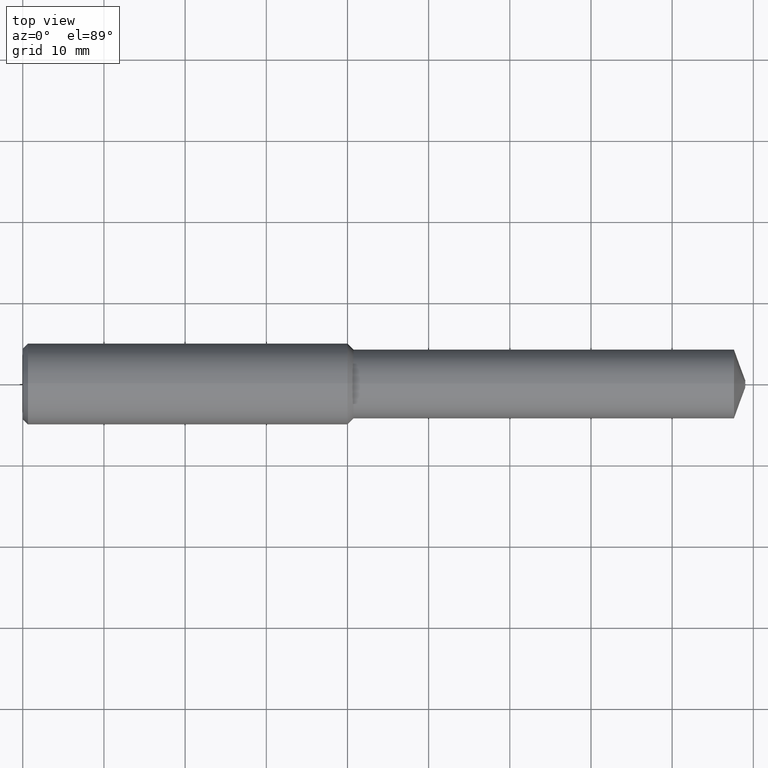
[diagram: clean part render]
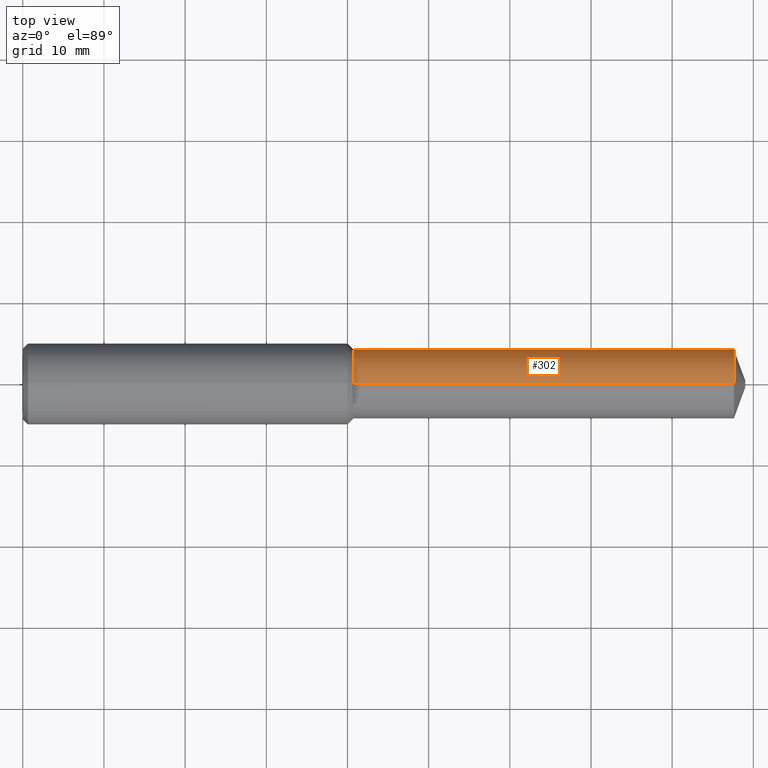
[diagram: same view with one face highlighted and labeled with its STEP entity id]
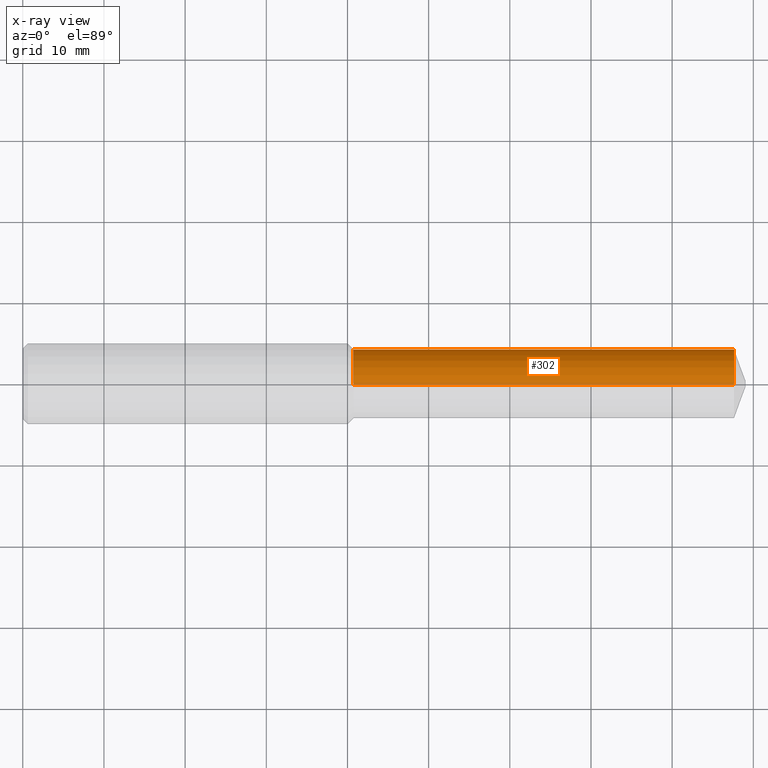
[diagram: x-ray of the same camera — body ghosted, the highlighted face saturated]
A machine part, top view. The second image highlights one B-rep face of the part: STEP entity #302.
The next image is the same camera in x-ray: the body ghosted, the highlighted face saturated — about 0% of this face is hidden behind the body in this view.
In plain terms, the highlighted cylindrical surface (edge-blend (fillet) strip) has radius 4.2545 mm, axis along (1, -0, -0).
Its self-contained STEP definition (entity closure, byte-faithful):
#1 = CARTESIAN_POINT ( 'NONE',  ( 3.449341472734085645, 0.000000000000000000, 0.000000000000000000 ) ) ;
#8 = LINE ( 'NONE', #353, #129 ) ;
#13 = EDGE_LOOP ( 'NONE', ( #243, #112, #214, #91 ) ) ;
#29 = CARTESIAN_POINT ( 'NONE',  ( 1.604153543307087038, 0.000000000000000000, -0.1675000000000002043 ) ) ;
#30 = VERTEX_POINT ( 'NONE', #345 ) ;
#45 = AXIS2_PLACEMENT_3D ( 'NONE', #159, #335, #355 ) ;
#50 = EDGE_CURVE ( 'NONE', #259, #30, #65, .T. ) ;
#59 = DIRECTION ( 'NONE',  ( 0.000000000000000000, 0.000000000000000000, -1.000000000000000000 ) ) ;
#65 = CIRCLE ( 'NONE', #199, 0.1675000000000004541 ) ;
#81 = LINE ( 'NONE', #359, #209 ) ;
#91 = ORIENTED_EDGE ( 'NONE', *, *, #329, .F. ) ;
#99 = CARTESIAN_POINT ( 'NONE',  ( 1.604153543307087038, 2.051283388571819784E-17, 0.1675000000000002043 ) ) ;
#101 = CARTESIAN_POINT ( 'NONE',  ( 3.449341472734085645, 2.051283388571821633E-17, -0.1675000000000003986 ) ) ;
#103 = CYLINDRICAL_SURFACE ( 'NONE', #45, 0.1675000000000003431 ) ;
#112 = ORIENTED_EDGE ( 'NONE', *, *, #241, .T. ) ;
#129 = VECTOR ( 'NONE', #328, 39.37007874015748143 ) ;
#135 = EDGE_CURVE ( 'NONE', #361, #264, #320, .T. ) ;
#155 = DIRECTION ( 'NONE',  ( 1.000000000000000000, -0.000000000000000000, -0.000000000000000000 ) ) ;
#159 = CARTESIAN_POINT ( 'NONE',  ( -0.03808593750000075634, 0.000000000000000000, 0.000000000000000000 ) ) ;
#181 = CARTESIAN_POINT ( 'NONE',  ( 1.604153543307087038, 0.000000000000000000, 0.000000000000000000 ) ) ;
#199 = AXIS2_PLACEMENT_3D ( 'NONE', #1, #234, #59 ) ;
#208 = AXIS2_PLACEMENT_3D ( 'NONE', #181, #155, #298 ) ;
#209 = VECTOR ( 'NONE', #310, 39.37007874015748143 ) ;
#214 = ORIENTED_EDGE ( 'NONE', *, *, #50, .F. ) ;
#234 = DIRECTION ( 'NONE',  ( 1.000000000000000000, -0.000000000000000000, -0.000000000000000000 ) ) ;
#241 = EDGE_CURVE ( 'NONE', #264, #30, #8, .T. ) ;
#243 = ORIENTED_EDGE ( 'NONE', *, *, #135, .T. ) ;
#259 = VERTEX_POINT ( 'NONE', #101 ) ;
#264 = VERTEX_POINT ( 'NONE', #99 ) ;
#274 = FACE_OUTER_BOUND ( 'NONE', #13, .T. ) ;
#298 = DIRECTION ( 'NONE',  ( 0.000000000000000000, 0.000000000000000000, -1.000000000000000000 ) ) ;
#302 = ADVANCED_FACE ( 'NONE', ( #274 ), #103, .T. ) ;
#310 = DIRECTION ( 'NONE',  ( 1.000000000000000000, -0.000000000000000000, -0.000000000000000000 ) ) ;
#320 = CIRCLE ( 'NONE', #208, 0.1675000000000002043 ) ;
#328 = DIRECTION ( 'NONE',  ( 1.000000000000000000, -0.000000000000000000, -0.000000000000000000 ) ) ;
#329 = EDGE_CURVE ( 'NONE', #361, #259, #81, .T. ) ;
#335 = DIRECTION ( 'NONE',  ( 1.000000000000000000, -0.000000000000000000, -0.000000000000000000 ) ) ;
#345 = CARTESIAN_POINT ( 'NONE',  ( 3.449341472734085645, 0.000000000000000000, 0.1675000000000003986 ) ) ;
#353 = CARTESIAN_POINT ( 'NONE',  ( -0.03808593750000075634, 2.051283388571820708E-17, 0.1675000000000003431 ) ) ;
#355 = DIRECTION ( 'NONE',  ( 0.000000000000000000, 0.000000000000000000, -1.000000000000000000 ) ) ;
#359 = CARTESIAN_POINT ( 'NONE',  ( -0.03808593750000075634, 0.000000000000000000, -0.1675000000000003431 ) ) ;
#361 = VERTEX_POINT ( 'NONE', #29 ) ;